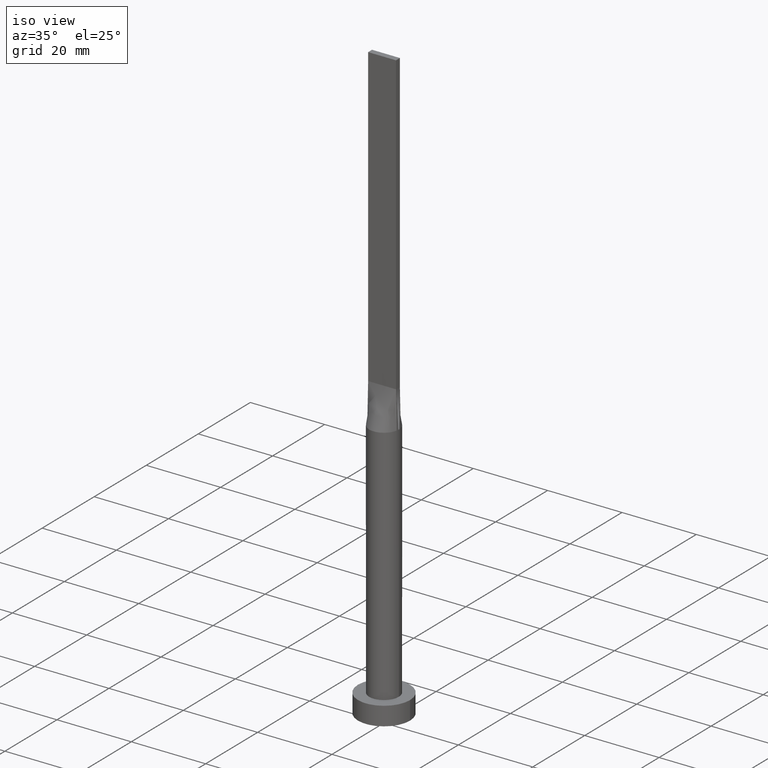
[diagram: clean part render]
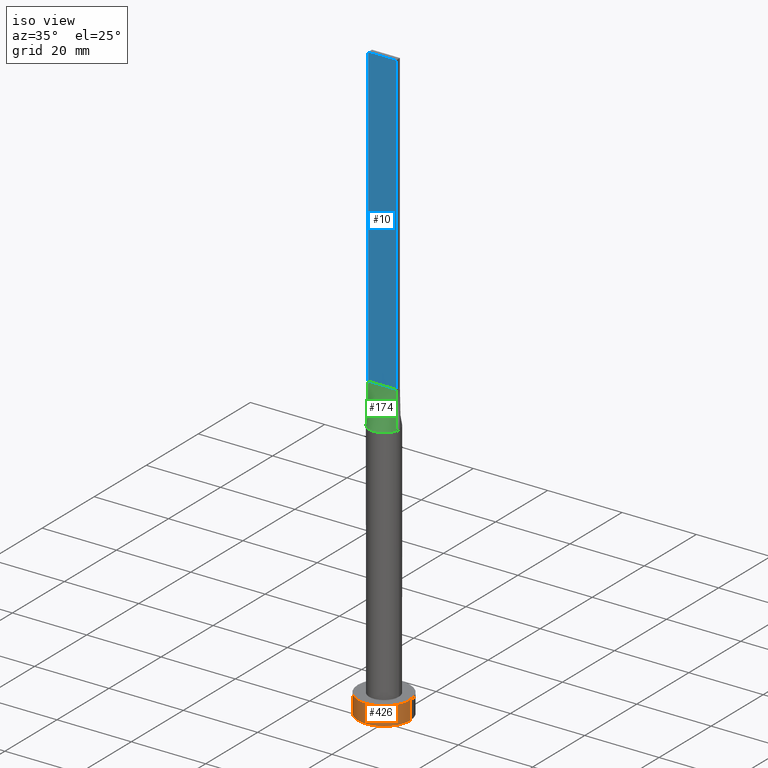
[diagram: same view with three faces highlighted in distinct colors, each labeled with its STEP entity id]
A machine part, iso view with three faces highlighted in distinct colors.
Their STEP definitions:

[orange] entity #426 — the highlighted cylindrical surface (edge-blend (fillet) strip) has radius 7 mm, axis along (-0, -0, -1).
#7 = ORIENTED_EDGE ( 'NONE', *, *, #253, .T. ) ;
#89 = VERTEX_POINT ( 'NONE', #395 ) ;
#110 = DIRECTION ( 'NONE',  ( 1.000000000000000000, 0.000000000000000000, 0.000000000000000000 ) ) ;
#112 = VERTEX_POINT ( 'NONE', #177 ) ;
#113 = CARTESIAN_POINT ( 'NONE',  ( 0.000000000000000000, 0.000000000000000000, 5.000000000000000000 ) ) ;
#118 = VERTEX_POINT ( 'NONE', #464 ) ;
#130 = DIRECTION ( 'NONE',  ( -1.000000000000000000, 0.000000000000000000, 0.000000000000000000 ) ) ;
#135 = CIRCLE ( 'NONE', #574, 7.000000000000000000 ) ;
#138 = AXIS2_PLACEMENT_3D ( 'NONE', #145, #413, #130 ) ;
#139 = DIRECTION ( 'NONE',  ( -0.000000000000000000, -0.000000000000000000, -1.000000000000000000 ) ) ;
#145 = CARTESIAN_POINT ( 'NONE',  ( 0.000000000000000000, 0.000000000000000000, 5.000000000000000000 ) ) ;
#177 = CARTESIAN_POINT ( 'NONE',  ( -7.000000000000000000, 0.000000000000000000, 0.000000000000000000 ) ) ;
#206 = VERTEX_POINT ( 'NONE', #429 ) ;
#214 = EDGE_CURVE ( 'NONE', #89, #206, #135, .T. ) ;
#221 = AXIS2_PLACEMENT_3D ( 'NONE', #375, #511, #110 ) ;
#228 = LINE ( 'NONE', #551, #431 ) ;
#232 = FACE_OUTER_BOUND ( 'NONE', #281, .T. ) ;
#253 = EDGE_CURVE ( 'NONE', #112, #118, #538, .T. ) ;
#263 = LINE ( 'NONE', #579, #378 ) ;
#281 = EDGE_LOOP ( 'NONE', ( #344, #363, #339, #7 ) ) ;
#298 = DIRECTION ( 'NONE',  ( -0.000000000000000000, -0.000000000000000000, -1.000000000000000000 ) ) ;
#339 = ORIENTED_EDGE ( 'NONE', *, *, #534, .T. ) ;
#344 = ORIENTED_EDGE ( 'NONE', *, *, #411, .F. ) ;
#363 = ORIENTED_EDGE ( 'NONE', *, *, #214, .F. ) ;
#375 = CARTESIAN_POINT ( 'NONE',  ( 0.000000000000000000, 0.000000000000000000, 0.000000000000000000 ) ) ;
#378 = VECTOR ( 'NONE', #298, 1000.000000000000000 ) ;
#381 = DIRECTION ( 'NONE',  ( 0.000000000000000000, 0.000000000000000000, 1.000000000000000000 ) ) ;
#395 = CARTESIAN_POINT ( 'NONE',  ( -7.000000000000000000, 0.000000000000000000, 5.000000000000000000 ) ) ;
#411 = EDGE_CURVE ( 'NONE', #206, #118, #228, .T. ) ;
#413 = DIRECTION ( 'NONE',  ( -0.000000000000000000, -0.000000000000000000, -1.000000000000000000 ) ) ;
#426 = ADVANCED_FACE ( 'NONE', ( #232 ), #456, .T. ) ;
#429 = CARTESIAN_POINT ( 'NONE',  ( 7.000000000000000000, 8.572527594031473190E-16, 5.000000000000000000 ) ) ;
#431 = VECTOR ( 'NONE', #139, 1000.000000000000000 ) ;
#456 = CYLINDRICAL_SURFACE ( 'NONE', #138, 7.000000000000000000 ) ;
#464 = CARTESIAN_POINT ( 'NONE',  ( 7.000000000000000000, 8.572527594031473190E-16, 0.000000000000000000 ) ) ;
#473 = DIRECTION ( 'NONE',  ( 1.000000000000000000, 0.000000000000000000, 0.000000000000000000 ) ) ;
#511 = DIRECTION ( 'NONE',  ( 0.000000000000000000, 0.000000000000000000, 1.000000000000000000 ) ) ;
#534 = EDGE_CURVE ( 'NONE', #89, #112, #263, .T. ) ;
#538 = CIRCLE ( 'NONE', #221, 7.000000000000000000 ) ;
#551 = CARTESIAN_POINT ( 'NONE',  ( 7.000000000000000000, 8.572527594031473190E-16, 5.000000000000000000 ) ) ;
#574 = AXIS2_PLACEMENT_3D ( 'NONE', #113, #381, #473 ) ;
#579 = CARTESIAN_POINT ( 'NONE',  ( -7.000000000000000000, 0.000000000000000000, 5.000000000000000000 ) ) ;

[blue] entity #10 — the highlighted planar face has unit normal (0, 1, -0).
#5 = EDGE_CURVE ( 'NONE', #216, #531, #390, .T. ) ;
#10 = ADVANCED_FACE ( 'NONE', ( #245 ), #334, .F. ) ;
#18 = CARTESIAN_POINT ( 'NONE',  ( 3.750000000000000000, -0.7499999999999997780, 160.0000000000000000 ) ) ;
#22 = CARTESIAN_POINT ( 'NONE',  ( -3.750000000000000000, -0.7499999999999993339, 80.00000000000000000 ) ) ;
#25 = VECTOR ( 'NONE', #397, 1000.000000000000000 ) ;
#30 = CARTESIAN_POINT ( 'NONE',  ( -3.750000000000000000, -0.7499999999999993339, 160.0000000000000000 ) ) ;
#31 = DIRECTION ( 'NONE',  ( 1.000000000000000000, -5.782411586589357392E-17, 0.000000000000000000 ) ) ;
#64 = CARTESIAN_POINT ( 'NONE',  ( 3.750000000000000000, -0.7499999999999997780, 160.0000000000000000 ) ) ;
#74 = DIRECTION ( 'NONE',  ( -1.000000000000000000, 5.782411586589357392E-17, 0.000000000000000000 ) ) ;
#103 = ORIENTED_EDGE ( 'NONE', *, *, #140, .T. ) ;
#124 = CARTESIAN_POINT ( 'NONE',  ( -3.750000000000000000, -0.7499999999999993339, 160.0000000000000000 ) ) ;
#140 = EDGE_CURVE ( 'NONE', #219, #531, #180, .T. ) ;
#141 = ORIENTED_EDGE ( 'NONE', *, *, #376, .T. ) ;
#180 = LINE ( 'NONE', #365, #238 ) ;
#213 = LINE ( 'NONE', #124, #25 ) ;
#216 = VERTEX_POINT ( 'NONE', #18 ) ;
#219 = VERTEX_POINT ( 'NONE', #22 ) ;
#238 = VECTOR ( 'NONE', #491, 1000.000000000000000 ) ;
#245 = FACE_OUTER_BOUND ( 'NONE', #384, .T. ) ;
#249 = DIRECTION ( 'NONE',  ( 5.782411586589357392E-17, 1.000000000000000000, -0.000000000000000000 ) ) ;
#255 = ORIENTED_EDGE ( 'NONE', *, *, #346, .F. ) ;
#264 = VECTOR ( 'NONE', #31, 1000.000000000000000 ) ;
#300 = ORIENTED_EDGE ( 'NONE', *, *, #5, .F. ) ;
#334 = PLANE ( 'NONE',  #525 ) ;
#341 = CARTESIAN_POINT ( 'NONE',  ( -3.750000000000000000, -0.7499999999999993339, 160.0000000000000000 ) ) ;
#346 = EDGE_CURVE ( 'NONE', #571, #216, #445, .T. ) ;
#365 = CARTESIAN_POINT ( 'NONE',  ( -3.750000000000000000, -0.7499999999999993339, 80.00000000000000000 ) ) ;
#376 = EDGE_CURVE ( 'NONE', #571, #219, #213, .T. ) ;
#384 = EDGE_LOOP ( 'NONE', ( #103, #300, #255, #141 ) ) ;
#390 = LINE ( 'NONE', #64, #442 ) ;
#397 = DIRECTION ( 'NONE',  ( -0.000000000000000000, -0.000000000000000000, -1.000000000000000000 ) ) ;
#442 = VECTOR ( 'NONE', #575, 1000.000000000000000 ) ;
#445 = LINE ( 'NONE', #447, #264 ) ;
#447 = CARTESIAN_POINT ( 'NONE',  ( -3.750000000000000000, -0.7499999999999993339, 160.0000000000000000 ) ) ;
#479 = CARTESIAN_POINT ( 'NONE',  ( 3.750000000000000000, -0.7499999999999997780, 80.00000000000000000 ) ) ;
#491 = DIRECTION ( 'NONE',  ( 1.000000000000000000, -5.782411586589357392E-17, 0.000000000000000000 ) ) ;
#525 = AXIS2_PLACEMENT_3D ( 'NONE', #341, #249, #74 ) ;
#531 = VERTEX_POINT ( 'NONE', #479 ) ;
#571 = VERTEX_POINT ( 'NONE', #30 ) ;
#575 = DIRECTION ( 'NONE',  ( -0.000000000000000000, -0.000000000000000000, -1.000000000000000000 ) ) ;

[green] entity #174 — the highlighted face is a freeform B-spline surface patch.
#13 = LINE ( 'NONE', #414, #499 ) ;
#15 = CARTESIAN_POINT ( 'NONE',  ( 0.000000000000000000, 0.000000000000000000, 70.00000000000000000 ) ) ;
#22 = CARTESIAN_POINT ( 'NONE',  ( -3.750000000000000000, -0.7499999999999993339, 80.00000000000000000 ) ) ;
#32 = EDGE_LOOP ( 'NONE', ( #566, #350, #512, #250 ) ) ;
#44 = CARTESIAN_POINT ( 'NONE',  ( -1.091295599582913445, -3.883835547170274349, 70.00000000000000000 ) ) ;
#55 = CARTESIAN_POINT ( 'NONE',  ( 3.750000000000000000, -0.7499999999999997780, 80.00000000000000000 ) ) ;
#63 = CARTESIAN_POINT ( 'NONE',  ( 2.187499999999999556, -0.7499999999999995559, 79.99999999999998579 ) ) ;
#84 = DIRECTION ( 'NONE',  ( -0.01722960997854780865, -0.003445921995709440040, -0.9998456211643809155 ) ) ;
#85 = EDGE_CURVE ( 'NONE', #332, #531, #13, .T. ) ;
#86 = CARTESIAN_POINT ( 'NONE',  ( -3.858220138661117460, -1.104977361065555774, 70.00000000000001421 ) ) ;
#96 = CARTESIAN_POINT ( 'NONE',  ( -3.124999999999999556, -0.7499999999999993339, 79.99999999999998579 ) ) ;
#99 = CARTESIAN_POINT ( 'NONE',  ( -3.750000000000000000, -0.7499999999999993339, 80.00000000000000000 ) ) ;
#104 = CARTESIAN_POINT ( 'NONE',  ( 3.390424152328988416, -2.159240079384420419, 70.00000000000002842 ) ) ;
#105 = EDGE_CURVE ( 'NONE', #436, #332, #468, .T. ) ;
#108 = CARTESIAN_POINT ( 'NONE',  ( -0.3125000000000004441, -0.7499999999999993339, 80.00000000000000000 ) ) ;
#123 = CARTESIAN_POINT ( 'NONE',  ( -3.922322702763681335, -0.7844645405527344018, 70.00000000000000000 ) ) ;
#125 = CARTESIAN_POINT ( 'NONE',  ( -1.562500000000000000, -0.7499999999999993339, 79.99999999999998579 ) ) ;
#140 = EDGE_CURVE ( 'NONE', #219, #531, #180, .T. ) ;
#152 = CARTESIAN_POINT ( 'NONE',  ( 3.922322702763681335, -0.7844645405527340687, 70.00000000000000000 ) ) ;
#155 = CARTESIAN_POINT ( 'NONE',  ( 3.437499999999999556, -0.7499999999999997780, 79.99999999999998579 ) ) ;
#167 = DIRECTION ( 'NONE',  ( 0.000000000000000000, 0.000000000000000000, 1.000000000000000000 ) ) ;
#170 = CARTESIAN_POINT ( 'NONE',  ( -3.748423346357938168, -1.451418640363467683, 70.00000000000001421 ) ) ;
#174 = ADVANCED_FACE ( 'NONE', ( #417 ), #354, .T. ) ;
#180 = LINE ( 'NONE', #365, #238 ) ;
#196 = CARTESIAN_POINT ( 'NONE',  ( 0.3124999999999997780, -0.7499999999999994449, 79.99999999999998579 ) ) ;
#201 = LINE ( 'NONE', #385, #444 ) ;
#218 = CARTESIAN_POINT ( 'NONE',  ( -0.6250000000000003331, -0.7499999999999993339, 79.99999999999998579 ) ) ;
#219 = VERTEX_POINT ( 'NONE', #22 ) ;
#238 = VECTOR ( 'NONE', #491, 1000.000000000000000 ) ;
#244 = CARTESIAN_POINT ( 'NONE',  ( 1.562499999999999556, -0.7499999999999995559, 79.99999999999998579 ) ) ;
#246 = CARTESIAN_POINT ( 'NONE',  ( 0.6250000000000000000, -0.7499999999999994449, 79.99999999999998579 ) ) ;
#250 = ORIENTED_EDGE ( 'NONE', *, *, #580, .T. ) ;
#276 = CARTESIAN_POINT ( 'NONE',  ( -2.187499999999999556, -0.7499999999999993339, 79.99999999999998579 ) ) ;
#286 = CARTESIAN_POINT ( 'NONE',  ( 3.858220138661117016, -1.104977361065556662, 70.00000000000000000 ) ) ;
#291 = CARTESIAN_POINT ( 'NONE',  ( 2.499999999999999556, -0.7499999999999996669, 79.99999999999998579 ) ) ;
#302 = CARTESIAN_POINT ( 'NONE',  ( 3.922705552857197908, -0.7845410930675295047, 70.00000000000000000 ) ) ;
#303 = DIRECTION ( 'NONE',  ( -0.01722960997854780865, 0.003445921995709364145, 0.9998456211643809155 ) ) ;
#306 = CARTESIAN_POINT ( 'NONE',  ( -2.055729527861833272, -3.471178582471582175, 70.00000000000002842 ) ) ;
#326 = CARTESIAN_POINT ( 'NONE',  ( 2.474203369347176995, -3.177619198138200041, 70.00000000000004263 ) ) ;
#330 = CARTESIAN_POINT ( 'NONE',  ( 0.5465359351457046433, -4.000000000000000888, 70.00000000000001421 ) ) ;
#332 = VERTEX_POINT ( 'NONE', #302 ) ;
#340 = AXIS2_PLACEMENT_3D ( 'NONE', #15, #167, #347 ) ;
#347 = DIRECTION ( 'NONE',  ( 1.000000000000000000, 0.000000000000000000, 0.000000000000000000 ) ) ;
#350 = ORIENTED_EDGE ( 'NONE', *, *, #85, .T. ) ;
#354 = B_SPLINE_SURFACE_WITH_KNOTS ( 'NONE', 3, 1, ( 
 ( #123, #99 ),
 ( #86, #509 ),
 ( #170, #96 ),
 ( #362, #535 ),
 ( #505, #276 ),
 ( #462, #125 ),
 ( #306, #449 ),
 ( #44, #218 ),
 ( #399, #108 ),
 ( #330, #196 ),
 ( #562, #246 ),
 ( #435, #519 ),
 ( #326, #244 ),
 ( #477, #63 ),
 ( #104, #291 ),
 ( #523, #425 ),
 ( #286, #155 ),
 ( #152, #55 ) ),
 .UNSPECIFIED., .F., .F., .F.,
 ( 4, 2, 2, 2, 2, 2, 2, 2, 4 ),
 ( 2, 2 ),
 ( 0.000000000000000000, 0.1249999999999999722, 0.2500000000000000000, 0.3750000000000000000, 0.5000000000000001110, 0.6250000000000001110, 0.7500000000000000000, 0.8750000000000000000, 1.000000000000000000 ),
 ( 0.000000000000000000, 1.000000000000000000 ),
 .UNSPECIFIED. ) ;
#362 = CARTESIAN_POINT ( 'NONE',  ( -3.390424152328987528, -2.159240079384418642, 69.99999999999998579 ) ) ;
#365 = CARTESIAN_POINT ( 'NONE',  ( -3.750000000000000000, -0.7499999999999993339, 80.00000000000000000 ) ) ;
#385 = CARTESIAN_POINT ( 'NONE',  ( -3.836161351381840667, -0.7672322702763668678, 75.00000000000001421 ) ) ;
#399 = CARTESIAN_POINT ( 'NONE',  ( -0.5465359351457051984, -4.000000000000000888, 70.00000000000000000 ) ) ;
#407 = CARTESIAN_POINT ( 'NONE',  ( -3.922691619086878134, -0.7845384300002018474, 70.00000000000000000 ) ) ;
#414 = CARTESIAN_POINT ( 'NONE',  ( 3.836161351381840667, -0.7672322702763668678, 75.00000000000001421 ) ) ;
#417 = FACE_OUTER_BOUND ( 'NONE', #32, .T. ) ;
#425 = CARTESIAN_POINT ( 'NONE',  ( 3.124999999999999112, -0.7499999999999997780, 79.99999999999998579 ) ) ;
#435 = CARTESIAN_POINT ( 'NONE',  ( 2.055729527861832828, -3.471178582471583063, 70.00000000000001421 ) ) ;
#436 = VERTEX_POINT ( 'NONE', #407 ) ;
#444 = VECTOR ( 'NONE', #84, 1000.000000000000000 ) ;
#449 = CARTESIAN_POINT ( 'NONE',  ( -1.250000000000000222, -0.7499999999999993339, 79.99999999999998579 ) ) ;
#462 = CARTESIAN_POINT ( 'NONE',  ( -2.474203369347176107, -3.177619198138197820, 70.00000000000002842 ) ) ;
#468 = CIRCLE ( 'NONE', #340, 4.000000000000000000 ) ;
#477 = CARTESIAN_POINT ( 'NONE',  ( 3.140797583654741487, -2.520780954342107805, 70.00000000000001421 ) ) ;
#479 = CARTESIAN_POINT ( 'NONE',  ( 3.750000000000000000, -0.7499999999999997780, 80.00000000000000000 ) ) ;
#491 = DIRECTION ( 'NONE',  ( 1.000000000000000000, -5.782411586589357392E-17, 0.000000000000000000 ) ) ;
#499 = VECTOR ( 'NONE', #303, 1000.000000000000000 ) ;
#505 = CARTESIAN_POINT ( 'NONE',  ( -3.140797583654741043, -2.520780954342105140, 70.00000000000001421 ) ) ;
#509 = CARTESIAN_POINT ( 'NONE',  ( -3.437499999999999556, -0.7499999999999993339, 79.99999999999998579 ) ) ;
#512 = ORIENTED_EDGE ( 'NONE', *, *, #140, .F. ) ;
#519 = CARTESIAN_POINT ( 'NONE',  ( 1.250000000000000000, -0.7499999999999995559, 79.99999999999998579 ) ) ;
#523 = CARTESIAN_POINT ( 'NONE',  ( 3.748423346357937280, -1.451418640363469015, 70.00000000000001421 ) ) ;
#531 = VERTEX_POINT ( 'NONE', #479 ) ;
#535 = CARTESIAN_POINT ( 'NONE',  ( -2.500000000000000000, -0.7499999999999993339, 79.99999999999998579 ) ) ;
#562 = CARTESIAN_POINT ( 'NONE',  ( 1.091295599582912557, -3.883835547170275682, 70.00000000000001421 ) ) ;
#566 = ORIENTED_EDGE ( 'NONE', *, *, #105, .T. ) ;
#580 = EDGE_CURVE ( 'NONE', #219, #436, #201, .T. ) ;